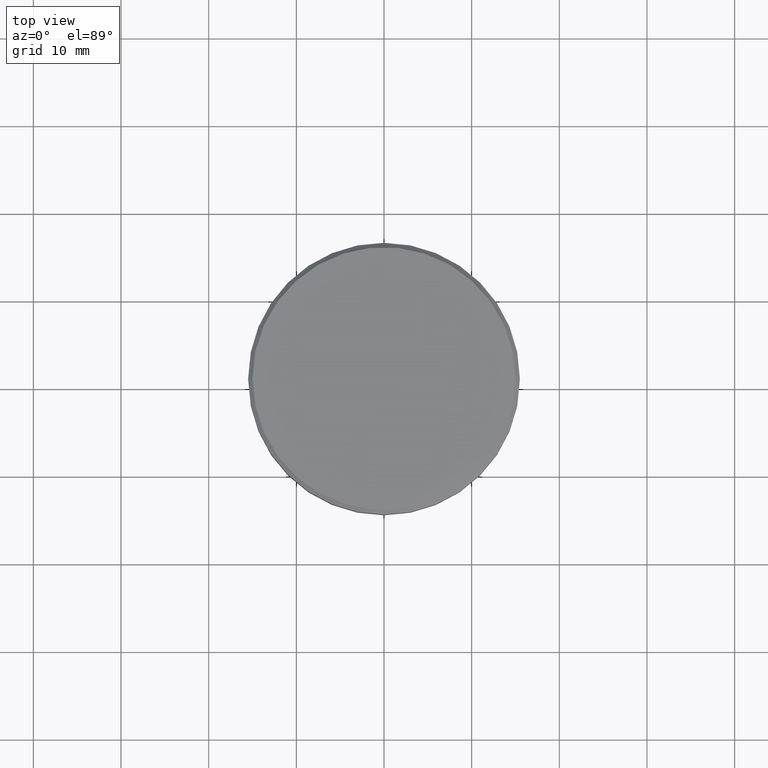
[diagram: clean part render]
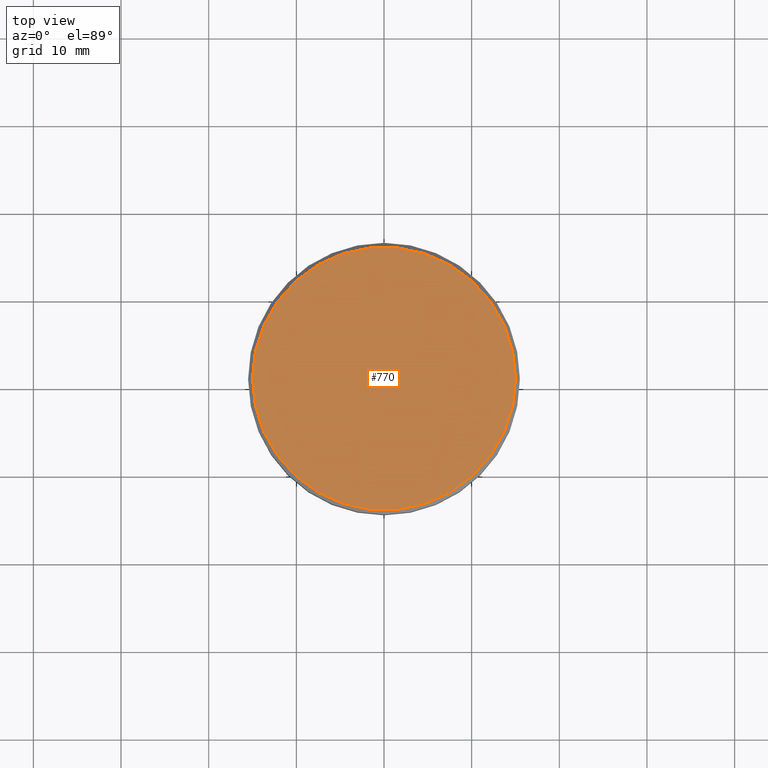
[diagram: same view with one face highlighted and labeled with its STEP entity id]
A machine part, top view. The second image highlights one B-rep face of the part: STEP entity #770.
In plain terms, the highlighted planar face has unit normal (0, -0, 1).
Its self-contained STEP definition (entity closure, byte-faithful):
#16 = DIRECTION ( 'NONE',  ( -0.000000000000000000, -0.000000000000000000, 1.000000000000000000 ) ) ;
#177 = PLANE ( 'NONE',  #577 ) ;
#181 = CIRCLE ( 'NONE', #333, 15.00000000000001421 ) ;
#185 = EDGE_LOOP ( 'NONE', ( #806, #551 ) ) ;
#333 = AXIS2_PLACEMENT_3D ( 'NONE', #922, #16, #815 ) ;
#348 = CARTESIAN_POINT ( 'NONE',  ( 0.000000000000000000, 0.000000000000000000, 0.000000000000000000 ) ) ;
#354 = CARTESIAN_POINT ( 'NONE',  ( 15.00000000000001421, 1.867586368699714559E-15, 0.000000000000000000 ) ) ;
#416 = VERTEX_POINT ( 'NONE', #639 ) ;
#443 = DIRECTION ( 'NONE',  ( 1.000000000000000000, 0.000000000000000000, 0.000000000000000000 ) ) ;
#551 = ORIENTED_EDGE ( 'NONE', *, *, #853, .T. ) ;
#577 = AXIS2_PLACEMENT_3D ( 'NONE', #1178, #645, #443 ) ;
#596 = DIRECTION ( 'NONE',  ( -0.000000000000000000, -0.000000000000000000, 1.000000000000000000 ) ) ;
#633 = EDGE_CURVE ( 'NONE', #416, #754, #1099, .T. ) ;
#639 = CARTESIAN_POINT ( 'NONE',  ( -15.00000000000001421, 0.000000000000000000, 0.000000000000000000 ) ) ;
#645 = DIRECTION ( 'NONE',  ( 0.000000000000000000, -0.000000000000000000, 1.000000000000000000 ) ) ;
#754 = VERTEX_POINT ( 'NONE', #354 ) ;
#770 = ADVANCED_FACE ( 'NONE', ( #1001 ), #177, .T. ) ;
#806 = ORIENTED_EDGE ( 'NONE', *, *, #633, .T. ) ;
#815 = DIRECTION ( 'NONE',  ( 1.000000000000000000, 0.000000000000000000, 0.000000000000000000 ) ) ;
#853 = EDGE_CURVE ( 'NONE', #754, #416, #181, .T. ) ;
#854 = AXIS2_PLACEMENT_3D ( 'NONE', #348, #596, #1168 ) ;
#922 = CARTESIAN_POINT ( 'NONE',  ( 0.000000000000000000, 0.000000000000000000, 0.000000000000000000 ) ) ;
#1001 = FACE_OUTER_BOUND ( 'NONE', #185, .T. ) ;
#1099 = CIRCLE ( 'NONE', #854, 15.00000000000001421 ) ;
#1168 = DIRECTION ( 'NONE',  ( 1.000000000000000000, 0.000000000000000000, 0.000000000000000000 ) ) ;
#1178 = CARTESIAN_POINT ( 'NONE',  ( 0.000000000000000000, 0.000000000000000000, 0.000000000000000000 ) ) ;